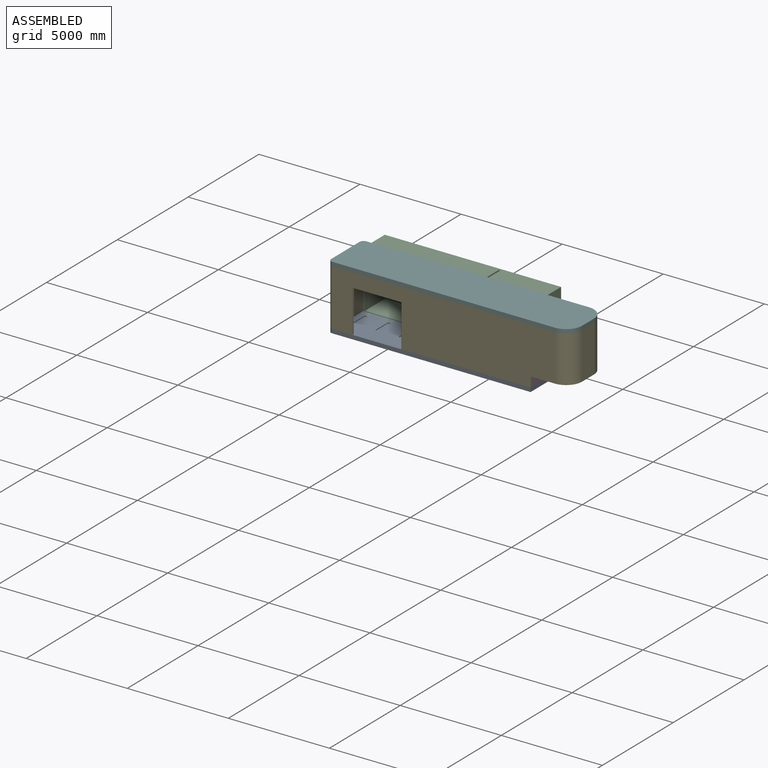
[diagram: assembled view]
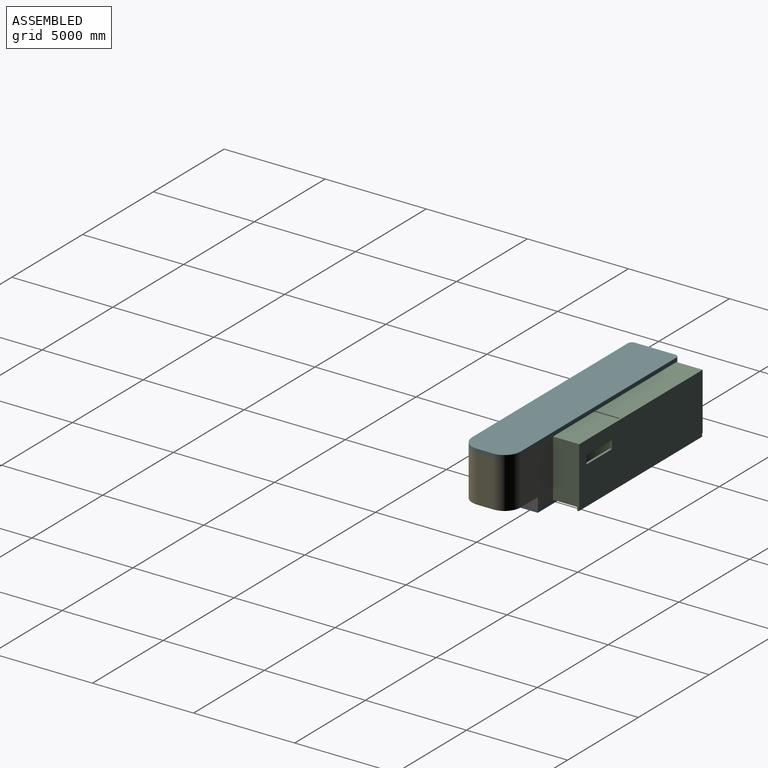
[diagram: assembled view, second angle]
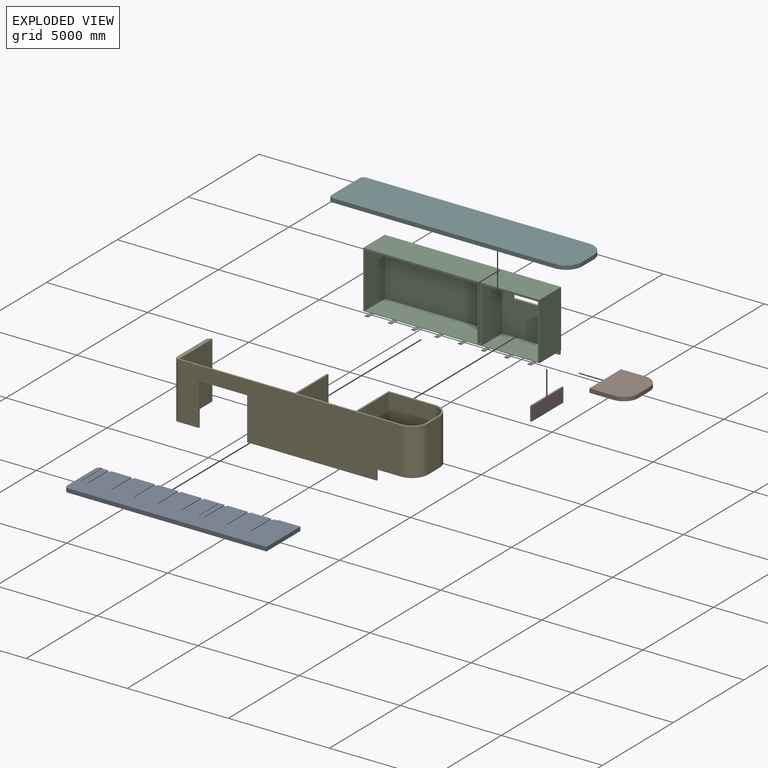
[diagram: exploded view]
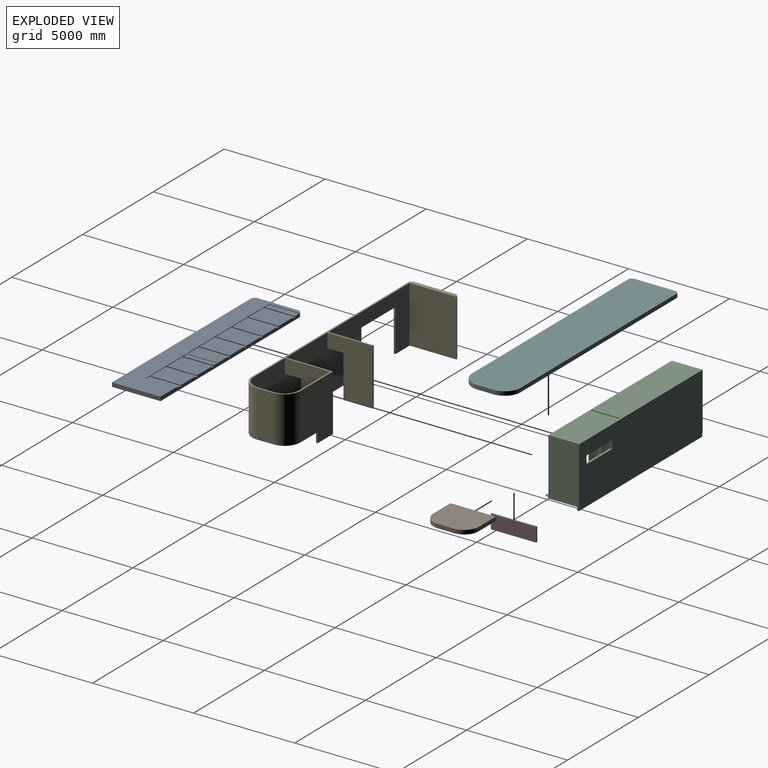
[diagram: exploded view, second angle]
ASSEMBLY  parts=6 mates=5
PART A: 64 faces, bbox 10000x2400x200 mm
  f0: plane 1500x1021.36mm, normal (0,0,1), area 1532037.3mm2, adj f8,f20,f57,f60
  f1: plane 1500x1021.36mm, normal (0,0,1), area 1532037.3mm2, adj f8,f20,f52,f55
  f2: plane 1500x1021.36mm, normal (0,0,1), area 1418437.3mm2, adj f8,f16,f17,f18,f19,f20,f42,f50
  f3: plane 1500x1021.36mm, normal (0,0,1), area 1532037.3mm2, adj f8,f16,f37,f45
  f4: plane 1500x1021.36mm, normal (0,0,1), area 1532037.3mm2, adj f8,f16,f40,f47
  f5: plane 1500x1021.36mm, normal (0,0,1), area 1532037.3mm2, adj f8,f16,f32,f35
  f6: plane 1500x1021.36mm, normal (0,0,1), area 1532037.3mm2, adj f8,f16,f27,f30
  f7: plane 1500x305.68mm, normal (0,0,1), area 458518.7mm2, adj f8,f16,f22,f25
  f8: plane 9800x200mm, normal (0,1,0), area 1632671.6mm2, adj f0,f1,f2,f3,f4,f5,f6,f7
  f9: plane 2400x200mm, normal (1,0,0), area 480000mm2, adj f8,f13,f14,f15
  f10: cylinder r=200mm len=200mm, axis (0,0,1), area 62831.9mm2, adj f8,f11,f14,f15,f22
  f11: plane 2000x200mm, normal (-1,0,0), area 400000mm2, adj f10,f12,f14,f15
  f12: cylinder r=200mm len=200mm, axis (0,0,1), area 62831.9mm2, adj f11,f13,f14,f15
  f13: plane 9800x200mm, normal (0,-1,0), area 1960000mm2, adj f9,f12,f14,f15
  f14: plane 10000x2400mm, normal (0,0,-1), area 23982831.9mm2, adj f8,f9,f10,f11,f12,f13
  f15: plane 10000x2400mm, normal (0,0,1), area 11016431.9mm2, adj f8,f9,f10,f11,f12,f13,f16,f17
  f16: plane 5720x30mm, normal (0,1,0), area 171600mm2, adj f2,f3,f4,f5,f6,f7,f15,f17
  f17: plane 1420x30mm, normal (-1,0,0), area 42600mm2, adj f2,f15,f16,f18
  f18: plane 80x30mm, normal (0,1,0), area 2400mm2, adj f2,f15,f17,f19
  f19: plane 1420x30mm, normal (1,0,0), area 42600mm2, adj f2,f15,f18,f20
  f20: plane 2920x30mm, normal (0,1,0), area 87600mm2, adj f0,f1,f2,f15,f19,f21,f23,f51
  f21: plane 1500x30mm, normal (-1,0,0), area 45000mm2, adj f8,f15,f20,f23
  f22: plane 1500x30mm, normal (1,0,0), area 45000mm2, adj f7,f10,f15,f16
  f23: plane 1500x235.68mm, normal (0,0,1), area 353518.7mm2, adj f8,f20,f21,f62
  f24: plane 1800x200mm, normal (0,0,1), area 360000mm2, adj f8,f25,f27,f28
  f25: plane 1800x50mm, normal (0.81,0,-0.58), area 110564.5mm2, adj f7,f8,f24,f26,f28
  f26: plane 300x128.64mm, normal (0,0,-1), area 38592.5mm2, adj f16,f25,f27,f28
  f27: plane 1800x50mm, normal (-0.81,0,-0.58), area 110564.5mm2, adj f6,f8,f24,f26,f28
  f28: plane 200x50mm, normal (0,1,0), area 8216mm2, adj f24,f25,f26,f27
  f29: plane 1800x200mm, normal (0,0,1), area 360000mm2, adj f8,f30,f32,f33
  f30: plane 1800x50mm, normal (0.81,0,-0.58), area 110564.5mm2, adj f6,f8,f29,f31,f33
  f31: plane 300x128.64mm, normal (0,0,-1), area 38592.5mm2, adj f16,f30,f32,f33
  f32: plane 1800x50mm, normal (-0.81,0,-0.58), area 110564.5mm2, adj f5,f8,f29,f31,f33
  f33: plane 200x50mm, normal (0,1,0), area 8216mm2, adj f29,f30,f31,f32
  f34: plane 1800x200mm, normal (0,0,1), area 360000mm2, adj f8,f35,f37,f38
  f35: plane 1800x50mm, normal (0.81,0,-0.58), area 110564.5mm2, adj f5,f8,f34,f36,f38
  f36: plane 300x128.64mm, normal (0,0,-1), area 38592.5mm2, adj f16,f35,f37,f38
  f37: plane 1800x50mm, normal (-0.81,0,-0.58), area 110564.5mm2, adj f3,f8,f34,f36,f38
  f38: plane 200x50mm, normal (0,1,0), area 8216mm2, adj f34,f35,f36,f37
  f39: plane 1800x200mm, normal (0,0,1), area 360000mm2, adj f8,f40,f42,f43
  f40: plane 1800x50mm, normal (0.81,0,-0.58), area 110564.5mm2, adj f4,f8,f39,f41,f43
  f41: plane 300x128.64mm, normal (0,0,-1), area 38592.5mm2, adj f16,f40,f42,f43
  f42: plane 1800x50mm, normal (-0.81,0,-0.58), area 110564.5mm2, adj f2,f8,f39,f41,f43
  f43: plane 200x50mm, normal (0,1,0), area 8216mm2, adj f39,f40,f41,f42
  f44: plane 1800x200mm, normal (0,0,1), area 360000mm2, adj f8,f45,f47,f48
  f45: plane 1800x50mm, normal (0.81,0,-0.58), area 110564.5mm2, adj f3,f8,f44,f46,f48
  f46: plane 300x128.64mm, normal (0,0,-1), area 38592.5mm2, adj f16,f45,f47,f48
  f47: plane 1800x50mm, normal (-0.81,0,-0.58), area 110564.5mm2, adj f4,f8,f44,f46,f48
  f48: plane 200x50mm, normal (0,1,0), area 8216mm2, adj f44,f45,f46,f47
  f49: plane 1800x200mm, normal (0,0,1), area 360000mm2, adj f8,f50,f52,f53
  f50: plane 1800x50mm, normal (0.81,0,-0.58), area 110564.5mm2, adj f2,f8,f49,f51,f53
  f51: plane 300x128.64mm, normal (0,0,-1), area 38592.5mm2, adj f20,f50,f52,f53
  f52: plane 1800x50mm, normal (-0.81,0,-0.58), area 110564.5mm2, adj f1,f8,f49,f51,f53
  f53: plane 200x50mm, normal (0,1,0), area 8216mm2, adj f49,f50,f51,f52
  f54: plane 1800x200mm, normal (0,0,1), area 360000mm2, adj f8,f55,f57,f58
  f55: plane 1800x50mm, normal (0.81,0,-0.58), area 110564.5mm2, adj f1,f8,f54,f56,f58
  f56: plane 300x128.64mm, normal (0,0,-1), area 38592.5mm2, adj f20,f55,f57,f58
  f57: plane 1800x50mm, normal (-0.81,0,-0.58), area 110564.5mm2, adj f0,f8,f54,f56,f58
  f58: plane 200x50mm, normal (0,1,0), area 8216mm2, adj f54,f55,f56,f57
  f59: plane 1800x200mm, normal (0,0,1), area 360000mm2, adj f8,f60,f62,f63
  f60: plane 1800x50mm, normal (0.81,0,-0.58), area 110564.5mm2, adj f0,f8,f59,f61,f63
  f61: plane 300x128.64mm, normal (0,0,-1), area 38592.5mm2, adj f20,f60,f62,f63
  f62: plane 1800x50mm, normal (-0.81,0,-0.58), area 110564.5mm2, adj f8,f23,f59,f61,f63
  f63: plane 200x50mm, normal (0,1,0), area 8216mm2, adj f59,f60,f61,f62
PART B: 8 faces, bbox 1920x2240x200 mm
  f0: plane 2240x200mm, normal (-1,0,0), area 448000mm2, adj f1,f5,f6,f7
  f1: plane 1200x200mm, normal (0,1,0), area 240000mm2, adj f0,f2,f6,f7
  f2: cylinder r=720mm len=720mm, axis (0,0,-1), area 226194.7mm2, adj f1,f3,f6,f7
  f3: plane 800x200mm, normal (1,0,0), area 160000mm2, adj f2,f4,f6,f7
  f4: cylinder r=720mm len=720mm, axis (0,0,-1), area 226194.7mm2, adj f3,f5,f6,f7
  f5: plane 1200x200mm, normal (0,-1,0), area 240000mm2, adj f0,f4,f6,f7
  f6: plane 2240x1920mm, normal (0,0,1), area 4078300.8mm2, adj f0,f1,f2,f3,f4,f5
  f7: plane 2240x1920mm, normal (0,0,-1), area 4078300.8mm2, adj f0,f1,f2,f3,f4,f5
PART C: 76 faces, bbox 8720x1825x3000 mm
  f0: plane 2700x1420mm, normal (1,0,0), area 3834000mm2, adj f1,f14,f17,f75
  f1: plane 2760x2700mm, normal (0,-1,0), area 6732000mm2, adj f0,f2,f14,f70,f71,f72,f73,f75
  f2: plane 2700x1420mm, normal (-1,0,0), area 3834000mm2, adj f1,f14,f17,f75
  f3: plane 2700x1420mm, normal (1,0,0), area 3834000mm2, adj f4,f16,f17,f74
  f4: plane 5560x2700mm, normal (0,-1,0), area 15012000mm2, adj f3,f5,f16,f74
  f5: plane 2700x1420mm, normal (-1,0,0), area 3834000mm2, adj f4,f16,f17,f74
  f6: plane 1420x1021.36mm, normal (0,0,-1), area 1450328.5mm2, adj f17,f59,f63,f67
  f7: plane 1420x1021.36mm, normal (0,0,-1), area 1450328.5mm2, adj f17,f54,f58,f67
  f8: plane 1420x1021.36mm, normal (0,0,-1), area 1450328.5mm2, adj f17,f49,f53,f67
  f9: plane 1420x1021.36mm, normal (0,0,-1), area 1450328.5mm2, adj f17,f44,f48,f67
  f10: plane 1420x1021.36mm, normal (0,0,-1), area 1450328.5mm2, adj f17,f39,f43,f67
  f11: plane 1420x1021.36mm, normal (0,0,-1), area 1450328.5mm2, adj f17,f34,f38,f67
  f12: plane 1420x1021.36mm, normal (0,0,-1), area 1450328.5mm2, adj f17,f29,f33,f67
  f13: plane 1420x305.68mm, normal (0,0,-1), area 434064.4mm2, adj f17,f20,f28,f67
  f14: plane 2760x1420mm, normal (0,0,1), area 3919200mm2, adj f0,f1,f2,f17
  f15: plane 1420x80mm, normal (0,0,1), area 113600mm2, adj f17,f22,f23,f24
  f16: plane 5560x1420mm, normal (0,0,1), area 7895200mm2, adj f3,f4,f5,f17
  f17: plane 8720x2830mm, normal (0,-1,0), area 1989600mm2, adj f0,f2,f3,f5,f6,f7,f8,f9
  f18: plane 3000x1525mm, normal (1,0,0), area 4329350mm2, adj f17,f19,f21,f25,f66,f67,f68,f69
  f19: plane 8720x170mm, normal (0,1,0), area 1482400mm2, adj f18,f20,f66,f68
  f20: plane 3000x1525mm, normal (-1,0,0), area 4329350mm2, adj f13,f17,f19,f25,f66,f67,f68,f69
  f21: plane 1420x235.68mm, normal (0,0,-1), area 334664.2mm2, adj f17,f18,f64,f67
  f22: plane 2800x1420mm, normal (1,0,0), area 3976000mm2, adj f15,f17,f23,f25
  f23: plane 2800x80mm, normal (0,-1,0), area 224000mm2, adj f15,f22,f24,f25
  f24: plane 2800x1420mm, normal (-1,0,0), area 3976000mm2, adj f15,f17,f23,f25
  f25: plane 8720x1525mm, normal (0,0,1), area 13184400mm2, adj f17,f18,f20,f22,f23,f24,f69
  f26: plane 300x128.64mm, normal (0,0,1), area 38592.5mm2, adj f17,f28,f29,f30
  f27: plane 1720x200mm, normal (0,0,-1), area 344000mm2, adj f28,f29,f30,f67
  f28: plane 1720x50mm, normal (-0.81,0,0.58), area 105650.6mm2, adj f13,f26,f27,f30,f67
  f29: plane 1720x50mm, normal (0.81,0,0.58), area 105650.4mm2, adj f12,f26,f27,f30,f67
  f30: plane 200x50mm, normal (0,-1,0), area 8216mm2, adj f26,f27,f28,f29
  f31: plane 300x128.64mm, normal (0,0,1), area 38592.5mm2, adj f17,f33,f34,f35
  f32: plane 1720x200mm, normal (0,0,-1), area 344000mm2, adj f33,f34,f35,f67
  f33: plane 1720x50mm, normal (-0.81,0,0.58), area 105650.6mm2, adj f12,f31,f32,f35,f67
  f34: plane 1720x50mm, normal (0.81,0,0.58), area 105650.4mm2, adj f11,f31,f32,f35,f67
  f35: plane 200x50mm, normal (0,-1,0), area 8216mm2, adj f31,f32,f33,f34
  f36: plane 300x128.64mm, normal (0,0,1), area 38592.5mm2, adj f17,f38,f39,f40
  f37: plane 1720x200mm, normal (0,0,-1), area 344000mm2, adj f38,f39,f40,f67
  f38: plane 1720x50mm, normal (-0.81,0,0.58), area 105650.6mm2, adj f11,f36,f37,f40,f67
  f39: plane 1720x50mm, normal (0.81,0,0.58), area 105650.4mm2, adj f10,f36,f37,f40,f67
  f40: plane 200x50mm, normal (0,-1,0), area 8216mm2, adj f36,f37,f38,f39
  f41: plane 300x128.64mm, normal (0,0,1), area 38592.5mm2, adj f17,f43,f44,f45
  f42: plane 1720x200mm, normal (0,0,-1), area 344000mm2, adj f43,f44,f45,f67
  f43: plane 1720x50mm, normal (-0.81,0,0.58), area 105650.6mm2, adj f10,f41,f42,f45,f67
  f44: plane 1720x50mm, normal (0.81,0,0.58), area 105650.4mm2, adj f9,f41,f42,f45,f67
  f45: plane 200x50mm, normal (0,-1,0), area 8216mm2, adj f41,f42,f43,f44
  f46: plane 300x128.64mm, normal (0,0,1), area 38592.5mm2, adj f17,f48,f49,f50
  f47: plane 1720x200mm, normal (0,0,-1), area 344000mm2, adj f48,f49,f50,f67
  f48: plane 1720x50mm, normal (-0.81,0,0.58), area 105650.6mm2, adj f9,f46,f47,f50,f67
  f49: plane 1720x50mm, normal (0.81,0,0.58), area 105650.4mm2, adj f8,f46,f47,f50,f67
  f50: plane 200x50mm, normal (0,-1,0), area 8216mm2, adj f46,f47,f48,f49
  f51: plane 300x128.64mm, normal (0,0,1), area 38592.5mm2, adj f17,f53,f54,f55
  f52: plane 1720x200mm, normal (0,0,-1), area 344000mm2, adj f53,f54,f55,f67
  f53: plane 1720x50mm, normal (-0.81,0,0.58), area 105650.6mm2, adj f8,f51,f52,f55,f67
  f54: plane 1720x50mm, normal (0.81,0,0.58), area 105650.4mm2, adj f7,f51,f52,f55,f67
  f55: plane 200x50mm, normal (0,-1,0), area 8216mm2, adj f51,f52,f53,f54
  f56: plane 300x128.64mm, normal (0,0,1), area 38592.5mm2, adj f17,f58,f59,f60
  f57: plane 1720x200mm, normal (0,0,-1), area 344000mm2, adj f58,f59,f60,f67
  f58: plane 1720x50mm, normal (-0.81,0,0.58), area 105650.6mm2, adj f7,f56,f57,f60,f67
  f59: plane 1720x50mm, normal (0.81,0,0.58), area 105650.4mm2, adj f6,f56,f57,f60,f67
  f60: plane 200x50mm, normal (0,-1,0), area 8216mm2, adj f56,f57,f58,f59
  f61: plane 300x128.64mm, normal (0,0,1), area 38592.5mm2, adj f17,f63,f64,f65
  f62: plane 1720x200mm, normal (0,0,-1), area 344000mm2, adj f63,f64,f65,f67
  f63: plane 1720x50mm, normal (-0.81,0,0.58), area 105650.6mm2, adj f6,f61,f62,f65,f67
  f64: plane 1720x50mm, normal (0.81,0,0.58), area 105650.4mm2, adj f21,f61,f62,f65,f67
  f65: plane 200x50mm, normal (0,-1,0), area 8216mm2, adj f61,f62,f63,f64
  f66: plane 8720x80mm, normal (0,0,-1), area 697600mm2, adj f18,f19,f20,f67
  f67: plane 8720x170mm, normal (0,-1,0), area 1416673.1mm2, adj f6,f7,f8,f9,f10,f11,f12,f13
  f68: plane 8720x25mm, normal (0,0,-1), area 218000mm2, adj f18,f19,f20,f69
  f69: plane 8720x2830mm, normal (0,1,0), area 23957600mm2, adj f18,f20,f25,f68,f70,f71,f72,f73
  f70: plane 400x105mm, normal (1,0,0), area 42000mm2, adj f1,f69,f71,f73
  f71: plane 1800x105mm, normal (0,0,-1), area 189000mm2, adj f1,f69,f70,f72
  f72: plane 400x105mm, normal (-1,0,0), area 42000mm2, adj f1,f69,f71,f73
  f73: plane 1800x105mm, normal (0,0,1), area 189000mm2, adj f1,f69,f70,f72
  f74: plane 5560x1420mm, normal (0,0,-1), area 7895200mm2, adj f3,f4,f5,f17
  f75: plane 2760x1420mm, normal (0,0,-1), area 3919200mm2, adj f0,f1,f2,f17
PART D: 6 faces, bbox 80x2240x700 mm
  f0: plane 2240x700mm, normal (1,0,0), area 1568000mm2, adj f1,f3,f4,f5
  f1: plane 700x80mm, normal (0,1,0), area 56000mm2, adj f0,f2,f4,f5
  f2: plane 2240x700mm, normal (-1,0,0), area 1568000mm2, adj f1,f3,f4,f5
  f3: plane 700x80mm, normal (0,-1,0), area 56000mm2, adj f0,f2,f4,f5
  f4: plane 2240x80mm, normal (0,0,1), area 179200mm2, adj f0,f1,f2,f3
  f5: plane 2240x80mm, normal (0,0,-1), area 179200mm2, adj f0,f1,f2,f3
PART E: 34 faces, bbox 12000x2400x2800 mm
  f0: plane 1520x1080mm, normal (0,0,-1), area 201600mm2, adj f3,f4,f7,f15,f30,f32
  f1: plane 2800x2240mm, normal (-1,0,0), area 4592000mm2, adj f6,f16,f17,f22,f27,f28
  f2: plane 6400x80mm, normal (0,0,-1), area 512000mm2, adj f11,f17,f25,f31
  f3: plane 2800x2240mm, normal (1,0,0), area 4592000mm2, adj f0,f7,f17,f22,f29,f30
  f4: plane 2800x2320mm, normal (-1,0,0), area 4816000mm2, adj f0,f15,f17,f22,f29,f30
  f5: plane 2800x2240mm, normal (1,0,0), area 4592000mm2, adj f6,f16,f17,f22,f27,f28
  f6: plane 1440x80mm, normal (0,0,-1), area 115200mm2, adj f1,f5,f16,f27
  f7: plane 2800x2200mm, normal (0,-1,0), area 5560000mm2, adj f0,f3,f8,f22,f32,f33
  f8: cylinder r=720mm len=2300mm, axis (0,0,-1), area 2601238.7mm2, adj f7,f9,f22,f33
  f9: plane 2300x800mm, normal (-1,0,0), area 1840000mm2, adj f8,f21,f22,f33
  f10: cylinder r=200mm len=2800mm, axis (0,0,-1), area 879645.9mm2, adj f11,f20,f22,f23
  f11: plane 11000x2800mm, normal (0,-1,0), area 25160000mm2, adj f2,f10,f12,f22,f23,f24,f25,f26
  f12: cylinder r=800mm len=2300mm, axis (0,0,-1), area 2890265.2mm2, adj f11,f13,f22,f33
  f13: plane 2300x800mm, normal (1,0,0), area 1840000mm2, adj f12,f14,f22,f33
  f14: cylinder r=800mm len=2300mm, axis (0,0,-1), area 2890265.2mm2, adj f13,f15,f22,f33
  f15: plane 2800x2280mm, normal (0,1,0), area 5784000mm2, adj f0,f4,f14,f22,f32,f33
  f16: plane 2800x80mm, normal (0,1,0), area 224000mm2, adj f1,f5,f6,f22
  f17: plane 11000x2800mm, normal (0,1,0), area 25048000mm2, adj f1,f2,f3,f4,f5,f18,f21,f22
  f18: plane 2800x2320mm, normal (1,0,0), area 6496000mm2, adj f17,f19,f22,f23
  f19: cylinder r=200mm len=2800mm, axis (0,0,-1), area 879645.9mm2, adj f18,f20,f22,f23
  f20: plane 2800x2000mm, normal (-1,0,0), area 5600000mm2, adj f10,f19,f22,f23
  f21: cylinder r=720mm len=2300mm, axis (0,0,-1), area 2601238.7mm2, adj f9,f17,f22,f33
  f22: plane 12000x2400mm, normal (0,0,1), area 2138640.7mm2, adj f1,f3,f4,f5,f7,f8,f9,f10
  f23: plane 2400x1200mm, normal (0,0,-1), area 542831.9mm2, adj f10,f11,f17,f18,f19,f20,f26
  f24: plane 2400x80mm, normal (0,0,-1), area 192000mm2, adj f11,f17,f25,f26
  f25: plane 2100x80mm, normal (-1,0,0), area 168000mm2, adj f2,f11,f17,f24
  f26: plane 2100x80mm, normal (1,0,0), area 168000mm2, adj f11,f17,f23,f24
  f27: plane 2100x80mm, normal (0,-1,0), area 168000mm2, adj f1,f5,f6,f28
  f28: plane 800x80mm, normal (0,0,-1), area 64000mm2, adj f1,f5,f17,f27
  f29: plane 800x80mm, normal (0,0,-1), area 64000mm2, adj f3,f4,f17,f30
  f30: plane 2100x80mm, normal (0,-1,0), area 168000mm2, adj f0,f3,f4,f29
  f31: plane 500x80mm, normal (1,0,0), area 40000mm2, adj f2,f11,f17,f33
  f32: plane 500x80mm, normal (1,0,0), area 40000mm2, adj f0,f7,f15,f33
  f33: plane 2400x2000mm, normal (0,0,-1), area 447008.8mm2, adj f7,f8,f9,f11,f12,f13,f14,f15
PART F: 10 faces, bbox 12000x2400x200 mm
  f0: plane 11000x200mm, normal (0,1,0), area 2200000mm2, adj f1,f7,f8,f9
  f1: cylinder r=200mm len=200mm, axis (0,0,-1), area 62831.9mm2, adj f0,f2,f8,f9
  f2: plane 2000x200mm, normal (-1,0,0), area 400000mm2, adj f1,f3,f8,f9
  f3: cylinder r=200mm len=200mm, axis (0,0,-1), area 62831.9mm2, adj f2,f4,f8,f9
  f4: plane 11000x200mm, normal (0,-1,0), area 2200000mm2, adj f3,f5,f8,f9
  f5: cylinder r=800mm len=800mm, axis (0,0,-1), area 251327.4mm2, adj f4,f6,f8,f9
  f6: plane 800x200mm, normal (1,0,0), area 160000mm2, adj f5,f7,f8,f9
  f7: cylinder r=800mm len=800mm, axis (0,0,-1), area 251327.4mm2, adj f0,f6,f8,f9
  f8: plane 12000x2400mm, normal (0,0,1), area 28508141.5mm2, adj f0,f1,f2,f3,f4,f5,f6,f7
  f9: plane 12000x2400mm, normal (0,0,-1), area 28508141.5mm2, adj f0,f1,f2,f3,f4,f5,f6,f7
PLACE A t=(0,1120,-2800)mm
PLACE B t=(0,1120,-2800)mm
PLACE C t=(-1440,2841.85,-2800)mm
PLACE D t=(0,1120,-2800)mm
PLACE E t=(0,1120,-2800)mm
PLACE F t=(0,1120,-2800)mm
MATE fastened F.f9 <-> E.f22  axis (0,0,1) through (6000,1520,0)mm
MATE slider C.f65 <-> A.f8  axis (0,-1,0) through (2520,1791.85,-2880)mm
MATE fastened E.f2 <-> A.f15  axis (0,0,1) through (4000,-80,-2800)mm
MATE fastened D.f0 <-> B.f0  axis (1,0,0) through (4000,0,-2100)mm
MATE fastened D.f0 <-> E.f31  axis (1,0,0) through (4000,0,-2800)mm
